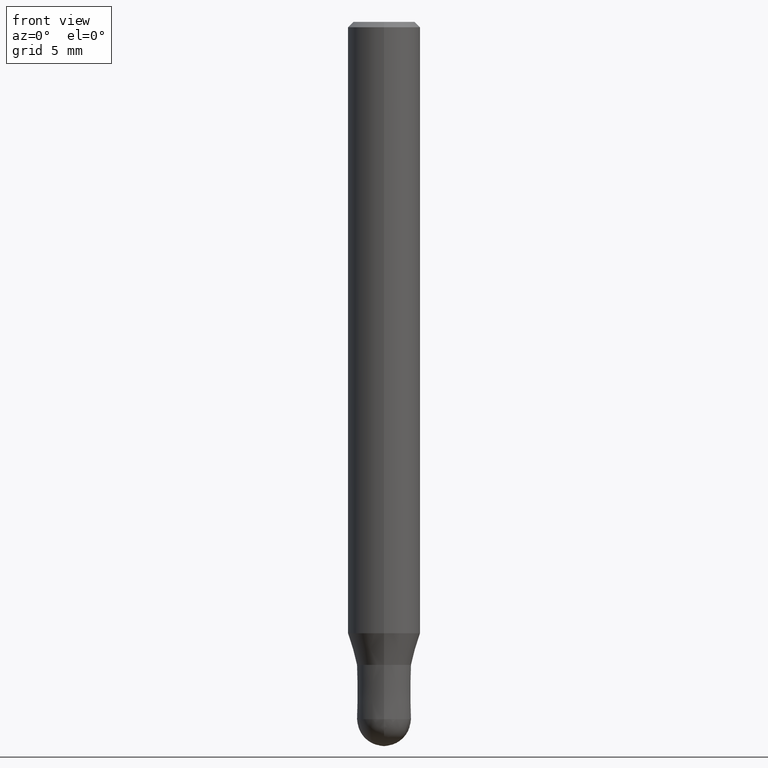
[diagram: clean part render]
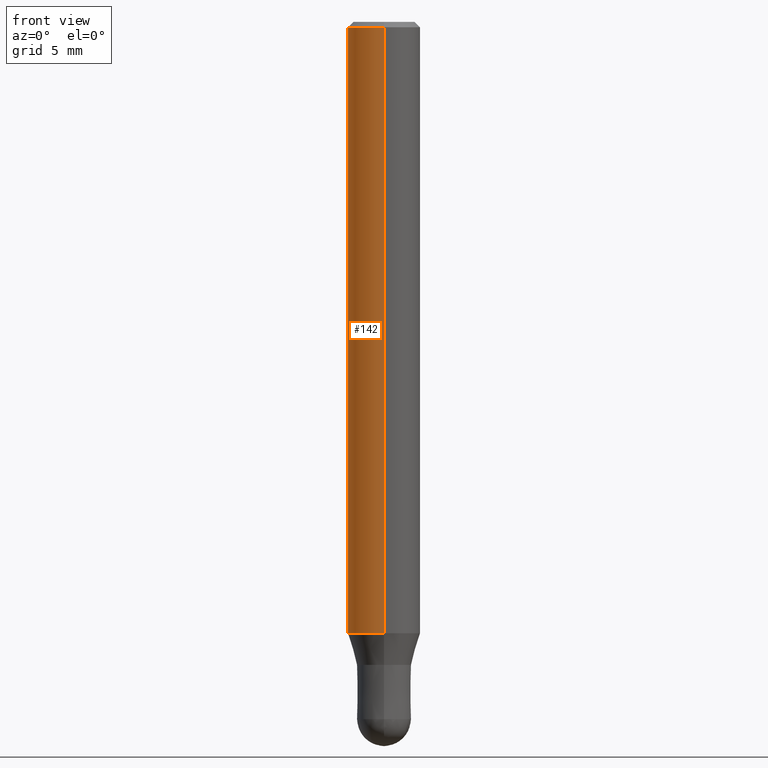
[diagram: same view with one face highlighted and labeled with its STEP entity id]
A machine part, front view. The second image highlights one B-rep face of the part: STEP entity #142.
In plain terms, the highlighted cylindrical surface (edge-blend (fillet) strip) has radius 2 mm, axis along (-0, -0, 1).
Its self-contained STEP definition (entity closure, byte-faithful):
#92=VERTEX_POINT('',#217);
#96=VERTEX_POINT('',#221);
#100=EDGE_CURVE('',#92,#156,#225,.T.);
#126=VERTEX_POINT('',#256);
#132=EDGE_CURVE('',#96,#156,#263,.T.);
#142=ADVANCED_FACE('',(#275),#276,.T.);
#156=VERTEX_POINT('',#293);
#168=EDGE_CURVE('',#92,#126,#305,.T.);
#188=EDGE_CURVE('',#126,#96,#328,.T.);
#217=CARTESIAN_POINT('',(2.44921270764475E-016,-2.0,-33.756));
#221=CARTESIAN_POINT('',(0.0,2.0,-0.299999999999997));
#225=CIRCLE('',#361,2.0);
#256=CARTESIAN_POINT('',(2.44921270764475E-016,-2.0,-0.299999999999997));
#263=LINE('',#411,#412);
#275=FACE_OUTER_BOUND('',#425,.T.);
#276=CYLINDRICAL_SURFACE('',#426,2.0);
#293=CARTESIAN_POINT('',(0.0,2.0,-33.756));
#305=LINE('',#458,#459);
#328=CIRCLE('',#489,2.0);
#361=AXIS2_PLACEMENT_3D('',#497,#498,#499);
#411=CARTESIAN_POINT('',(-2.44921270764475E-016,2.0,-17.028));
#412=VECTOR('',#560,1.0);
#425=EDGE_LOOP('',(#579,#580,#581,#582));
#426=AXIS2_PLACEMENT_3D('',#583,#584,#585);
#458=CARTESIAN_POINT('',(2.44921270764475E-016,-2.0,-17.028));
#459=VECTOR('',#609,1.0);
#489=AXIS2_PLACEMENT_3D('',#647,#648,#649);
#497=CARTESIAN_POINT('',(0.0,0.0,-33.756));
#498=DIRECTION('',(0.0,0.0,-1.0));
#499=DIRECTION('',(0.0,1.0,0.0));
#560=DIRECTION('',(0.0,0.0,-1.0));
#579=ORIENTED_EDGE('',*,*,#132,.T.);
#580=ORIENTED_EDGE('',*,*,#100,.F.);
#581=ORIENTED_EDGE('',*,*,#168,.T.);
#582=ORIENTED_EDGE('',*,*,#188,.T.);
#583=CARTESIAN_POINT('',(0.0,0.0,-17.028));
#584=DIRECTION('',(-0.0,-0.0,1.0));
#585=DIRECTION('',(0.0,1.0,0.0));
#609=DIRECTION('',(-0.0,-0.0,1.0));
#647=CARTESIAN_POINT('',(0.0,0.0,-0.299999999999997));
#648=DIRECTION('',(0.0,0.0,-1.0));
#649=DIRECTION('',(0.0,1.0,0.0));